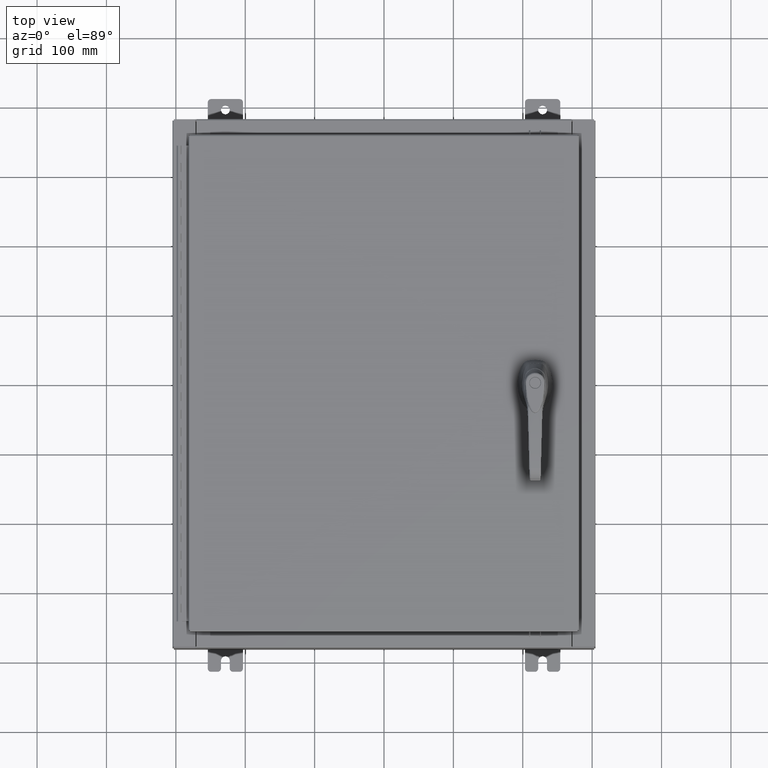
[diagram: clean part render]
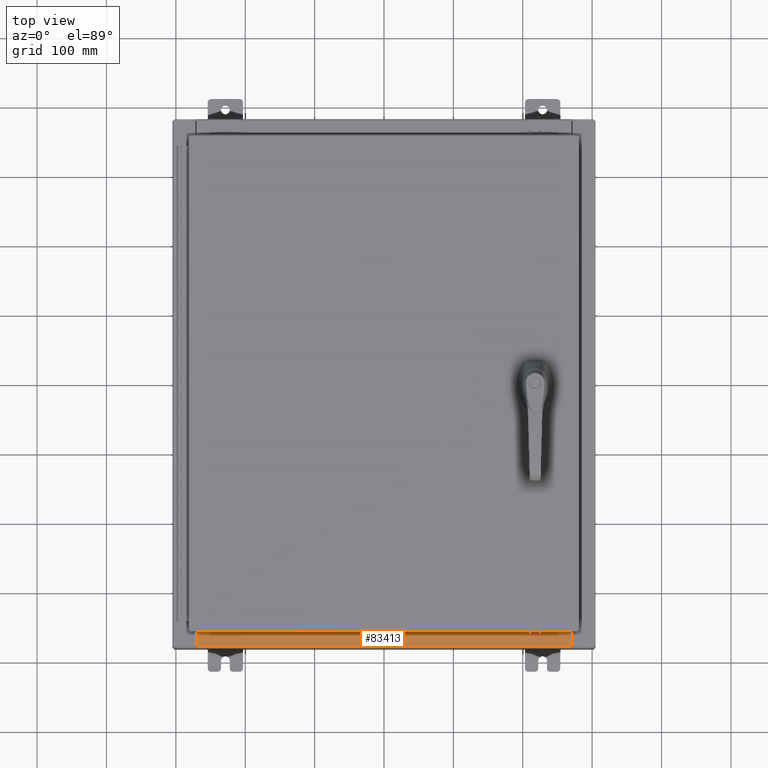
[diagram: same view with one face highlighted and labeled with its STEP entity id]
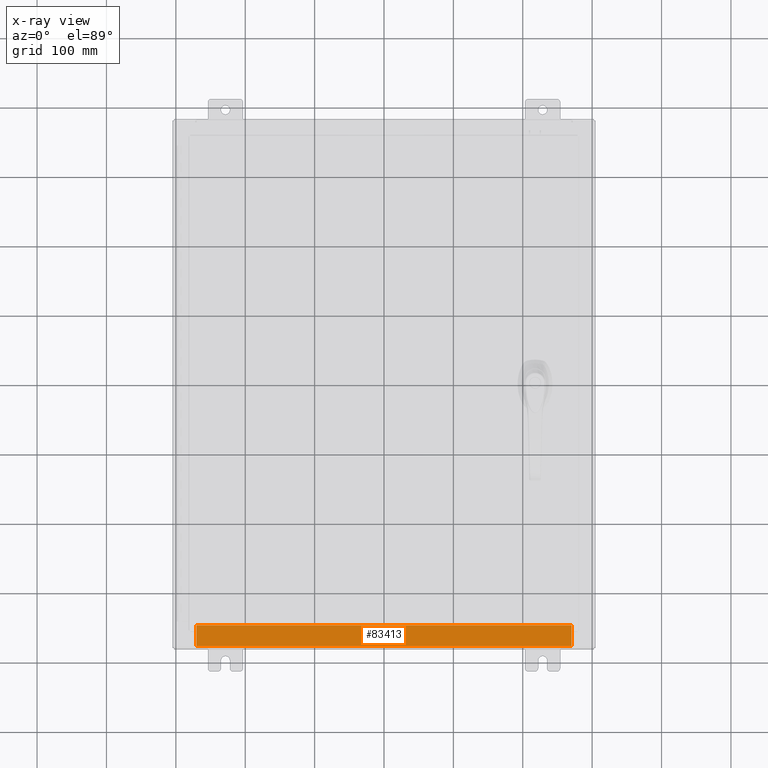
[diagram: x-ray of the same camera — body ghosted, the highlighted face saturated]
A machine part, top view. The second image highlights one B-rep face of the part: STEP entity #83413.
The next image is the same camera in x-ray: the body ghosted, the highlighted face saturated — about 0% of this face is hidden behind the body in this view.
In plain terms, the highlighted planar face has unit normal (-0, -0, 1).
Its self-contained STEP definition (entity closure, byte-faithful):
#149 = DIRECTION ( 'NONE',  ( -1.000000000000000000, 2.568202152506545800E-017, -9.159187855938968600E-032 ) ) ;
#2736 = DIRECTION ( 'NONE',  ( 0.0000000000000000000, 3.566381192773190000E-015, 1.000000000000000000 ) ) ;
#7679 = EDGE_CURVE ( 'NONE', #107324, #30253, #81011, .T. ) ;
#8989 = AXIS2_PLACEMENT_3D ( 'NONE', #75159, #2736, #66745 ) ;
#13780 = EDGE_CURVE ( 'NONE', #93678, #107324, #40352, .T. ) ;
#17858 = EDGE_CURVE ( 'NONE', #38301, #30253, #94958, .T. ) ;
#24631 = VECTOR ( 'NONE', #149, 39.37007874015748100 ) ;
#30253 = VERTEX_POINT ( 'NONE', #115117 ) ;
#38301 = VERTEX_POINT ( 'NONE', #78451 ) ;
#39178 = PLANE ( 'NONE',  #8989 ) ;
#40352 = LINE ( 'NONE', #80457, #86271 ) ;
#46546 = DIRECTION ( 'NONE',  ( -0.0000000000000000000, 1.000000000000000000, -3.566381192773190000E-015 ) ) ;
#48232 = CARTESIAN_POINT ( 'NONE',  ( -10.63720000000000200, -0.07469999999999973900, 3.000000000000000900 ) ) ;
#54878 = CARTESIAN_POINT ( 'NONE',  ( -2.252313287748515100E-018, -0.08770000000000000000, 3.000000000000001300 ) ) ;
#55264 = DIRECTION ( 'NONE',  ( -1.000000000000000000, 0.0000000000000000000, 0.0000000000000000000 ) ) ;
#56777 = LINE ( 'NONE', #66389, #78320 ) ;
#64179 = ORIENTED_EDGE ( 'NONE', *, *, #17858, .T. ) ;
#64961 = EDGE_LOOP ( 'NONE', ( #114298, #102956, #102010, #64179 ) ) ;
#66389 = CARTESIAN_POINT ( 'NONE',  ( 10.63720000000000200, -1.300299999999999800, 3.000000000000005300 ) ) ;
#66745 = DIRECTION ( 'NONE',  ( 0.0000000000000000000, -1.000000000000000000, 3.566381192773190000E-015 ) ) ;
#73742 = CARTESIAN_POINT ( 'NONE',  ( 10.63720000000000200, -1.287299999999999900, 3.000000000000005300 ) ) ;
#75159 = CARTESIAN_POINT ( 'NONE',  ( 0.0000000000000000000, 1.069354855923099900E-014, 3.000000000000000900 ) ) ;
#76318 = FACE_OUTER_BOUND ( 'NONE', #64961, .T. ) ;
#78320 = VECTOR ( 'NONE', #112071, 39.37007874015748100 ) ;
#78451 = CARTESIAN_POINT ( 'NONE',  ( 10.63720000000000400, -0.08769999999999965300, 3.000000000000000900 ) ) ;
#78807 = CARTESIAN_POINT ( 'NONE',  ( -10.63720000000000200, -1.287299999999999200, 3.000000000000005300 ) ) ;
#80457 = CARTESIAN_POINT ( 'NONE',  ( 10.63720000000000400, -1.287299999999999900, 3.000000000000005300 ) ) ;
#81011 = LINE ( 'NONE', #48232, #105371 ) ;
#83413 = ADVANCED_FACE ( 'NONE', ( #76318 ), #39178, .T. ) ;
#86271 = VECTOR ( 'NONE', #55264, 39.37007874015748100 ) ;
#93678 = VERTEX_POINT ( 'NONE', #73742 ) ;
#94958 = LINE ( 'NONE', #54878, #24631 ) ;
#102010 = ORIENTED_EDGE ( 'NONE', *, *, #106943, .F. ) ;
#102956 = ORIENTED_EDGE ( 'NONE', *, *, #13780, .F. ) ;
#105371 = VECTOR ( 'NONE', #46546, 39.37007874015748100 ) ;
#106943 = EDGE_CURVE ( 'NONE', #38301, #93678, #56777, .T. ) ;
#107324 = VERTEX_POINT ( 'NONE', #78807 ) ;
#112071 = DIRECTION ( 'NONE',  ( -0.0000000000000000000, -1.000000000000000000, 3.566381192773190000E-015 ) ) ;
#114298 = ORIENTED_EDGE ( 'NONE', *, *, #7679, .F. ) ;
#115117 = CARTESIAN_POINT ( 'NONE',  ( -10.63720000000000200, -0.08770000000000000000, 3.000000000000000900 ) ) ;